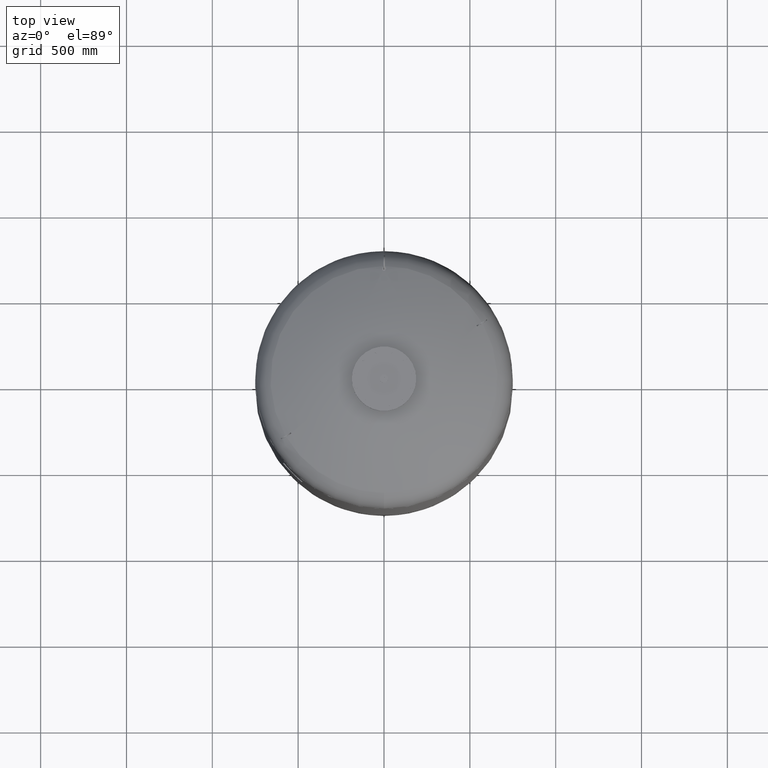
[diagram: clean part render]
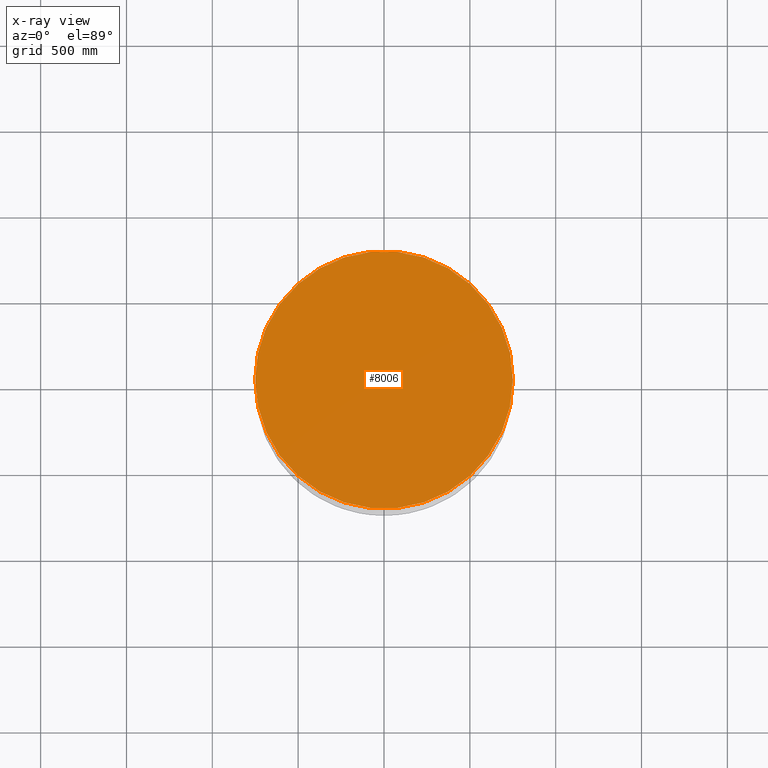
[diagram: x-ray — body ghosted, one internal face saturated and labeled with its STEP entity id]
A machine part, top view, then the same camera in x-ray: the body is ghosted and one INTERNAL B-rep face — a face not visible from any outside direction — is saturated and labeled: STEP entity #8006.
In plain terms, the highlighted planar face has unit normal (0, 0, 1).
Its self-contained STEP definition (entity closure, byte-faithful):
#7796=CARTESIAN_POINT('',(750.0,0.0,3180.0));
#7797=VERTEX_POINT('',#7796);
#7806=CARTESIAN_POINT('',(-750.000000000000230,-9.184548E-014,3180.0));
#7807=VERTEX_POINT('',#7806);
#7808=CARTESIAN_POINT('',(1.668796E-014,0.0,3180.0));
#7809=DIRECTION('',(0.0,0.0,1.0));
#7810=DIRECTION('',(1.0,0.0,0.0));
#7811=AXIS2_PLACEMENT_3D('',#7808,#7809,#7810);
#7812=CIRCLE('',#7811,750.0);
#7813=EDGE_CURVE('',#7807,#7797,#7812,.T.);
#7987=CARTESIAN_POINT('',(1.668796E-014,0.0,3180.0));
#7988=DIRECTION('',(0.0,0.0,1.0));
#7989=DIRECTION('',(1.0,0.0,0.0));
#7990=AXIS2_PLACEMENT_3D('',#7987,#7988,#7989);
#7991=CIRCLE('',#7990,750.0);
#7992=EDGE_CURVE('',#7797,#7807,#7991,.T.);
#7997=CARTESIAN_POINT('',(375.0,0.0,3180.0));
#7998=DIRECTION('',(0.0,0.0,1.0));
#7999=DIRECTION('',(1.0,0.0,0.0));
#8000=AXIS2_PLACEMENT_3D('',#7997,#7998,#7999);
#8001=PLANE('',#8000);
#8002=ORIENTED_EDGE('',*,*,#7992,.T.);
#8003=ORIENTED_EDGE('',*,*,#7813,.T.);
#8004=EDGE_LOOP('',(#8002,#8003));
#8005=FACE_OUTER_BOUND('',#8004,.T.);
#8006=ADVANCED_FACE('',(#8005),#8001,.T.);